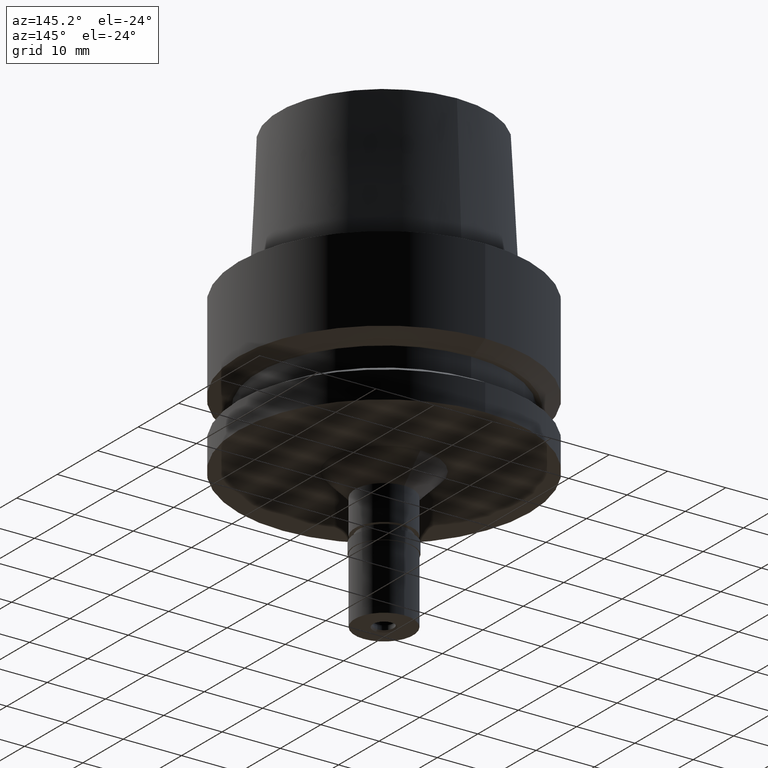
[diagram: clean part render]
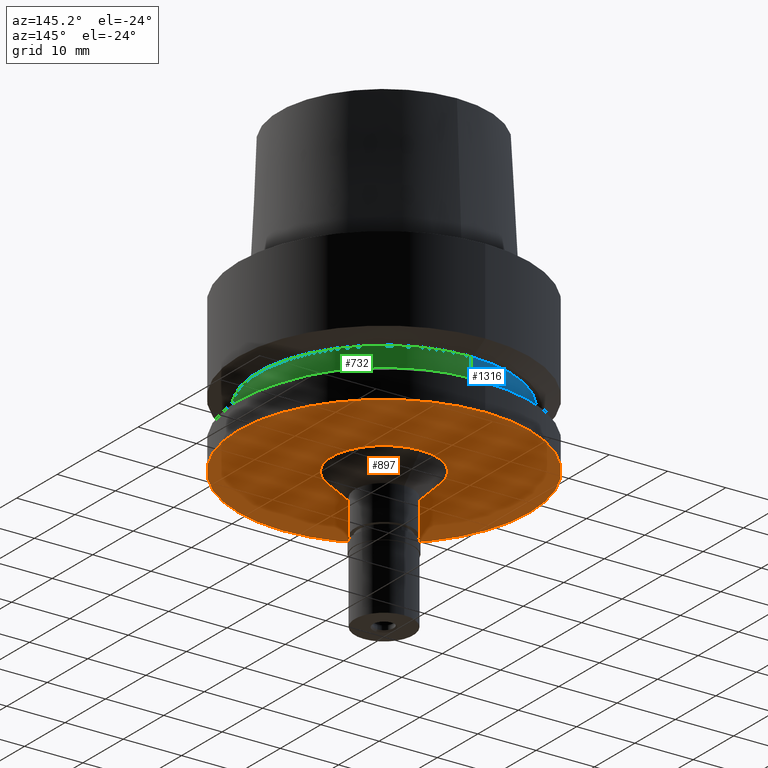
[diagram: same view with three faces highlighted in distinct colors, each labeled with its STEP entity id]
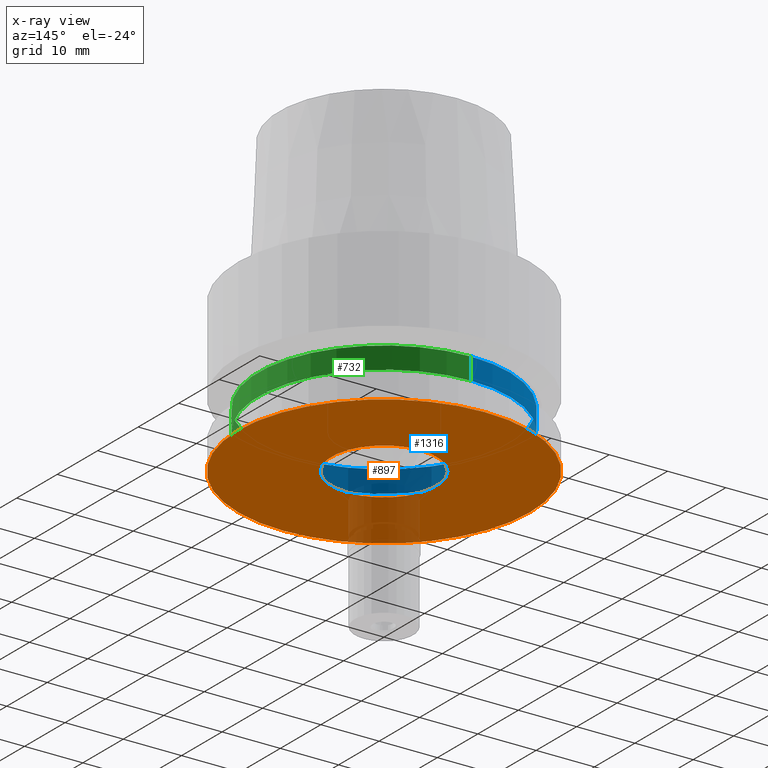
[diagram: x-ray of the same camera — body ghosted, the three highlighted faces saturated]
A machine part, auxiliary view with three faces highlighted in distinct colors.
The next image is the same camera in x-ray (body ghosted, the three faces saturated) — at least one of them is partly hidden behind the body in this view.
Their STEP definitions:

[orange] entity #897 — the highlighted planar face has unit normal (0, 0, 1).
#6 = VERTEX_POINT ( 'NONE', #2227 ) ;
#18 = CIRCLE ( 'NONE', #1287, 25.00000000000000000 ) ;
#46 = ORIENTED_EDGE ( 'NONE', *, *, #1903, .F. ) ;
#50 = DIRECTION ( 'NONE',  ( 0.0000000000000000000, -1.000000000000000000, 0.0000000000000000000 ) ) ;
#85 = DIRECTION ( 'NONE',  ( 0.0000000000000000000, 1.000000000000000000, 0.0000000000000000000 ) ) ;
#673 = DIRECTION ( 'NONE',  ( 1.000000000000000000, 0.0000000000000000000, 0.0000000000000000000 ) ) ;
#771 = CARTESIAN_POINT ( 'NONE',  ( 0.0000000000000000000, 9.000000000000000000, -26.00000000000000000 ) ) ;
#807 = EDGE_CURVE ( 'NONE', #1955, #1289, #1363, .T. ) ;
#897 = ADVANCED_FACE ( 'NONE', ( #1482, #1081 ), #1283, .F. ) ;
#913 = EDGE_CURVE ( 'NONE', #6, #1162, #1320, .T. ) ;
#925 = CARTESIAN_POINT ( 'NONE',  ( 0.0000000000000000000, 25.00000000000000000, -26.00000000000000000 ) ) ;
#1028 = ORIENTED_EDGE ( 'NONE', *, *, #807, .F. ) ;
#1038 = EDGE_LOOP ( 'NONE', ( #46, #1456 ) ) ;
#1051 = AXIS2_PLACEMENT_3D ( 'NONE', #2682, #2020, #2031 ) ;
#1081 = FACE_BOUND ( 'NONE', #1481, .T. ) ;
#1162 = VERTEX_POINT ( 'NONE', #925 ) ;
#1267 = EDGE_CURVE ( 'NONE', #1289, #1955, #2231, .T. ) ;
#1283 = PLANE ( 'NONE',  #2486 ) ;
#1287 = AXIS2_PLACEMENT_3D ( 'NONE', #2065, #2475, #2247 ) ;
#1289 = VERTEX_POINT ( 'NONE', #771 ) ;
#1320 = CIRCLE ( 'NONE', #2570, 25.00000000000000000 ) ;
#1363 = CIRCLE ( 'NONE', #1051, 9.000000000000000000 ) ;
#1456 = ORIENTED_EDGE ( 'NONE', *, *, #913, .F. ) ;
#1458 = AXIS2_PLACEMENT_3D ( 'NONE', #1732, #1541, #85 ) ;
#1481 = EDGE_LOOP ( 'NONE', ( #2001, #1028 ) ) ;
#1482 = FACE_OUTER_BOUND ( 'NONE', #1038, .T. ) ;
#1541 = DIRECTION ( 'NONE',  ( 0.0000000000000000000, 0.0000000000000000000, -1.000000000000000000 ) ) ;
#1689 = DIRECTION ( 'NONE',  ( 0.0000000000000000000, 0.0000000000000000000, 1.000000000000000000 ) ) ;
#1732 = CARTESIAN_POINT ( 'NONE',  ( 0.0000000000000000000, 0.0000000000000000000, -26.00000000000000000 ) ) ;
#1903 = EDGE_CURVE ( 'NONE', #1162, #6, #18, .T. ) ;
#1955 = VERTEX_POINT ( 'NONE', #2292 ) ;
#2001 = ORIENTED_EDGE ( 'NONE', *, *, #1267, .F. ) ;
#2020 = DIRECTION ( 'NONE',  ( 0.0000000000000000000, 0.0000000000000000000, -1.000000000000000000 ) ) ;
#2031 = DIRECTION ( 'NONE',  ( 0.0000000000000000000, -1.000000000000000000, 0.0000000000000000000 ) ) ;
#2065 = CARTESIAN_POINT ( 'NONE',  ( 0.0000000000000000000, 0.0000000000000000000, -26.00000000000000000 ) ) ;
#2100 = CARTESIAN_POINT ( 'NONE',  ( 0.0000000000000000000, 0.0000000000000000000, -26.00000000000000000 ) ) ;
#2227 = CARTESIAN_POINT ( 'NONE',  ( 0.0000000000000000000, -25.00000000000000000, -26.00000000000000000 ) ) ;
#2231 = CIRCLE ( 'NONE', #1458, 9.000000000000000000 ) ;
#2247 = DIRECTION ( 'NONE',  ( 0.0000000000000000000, 1.000000000000000000, 0.0000000000000000000 ) ) ;
#2292 = CARTESIAN_POINT ( 'NONE',  ( 0.0000000000000000000, -9.000000000000000000, -26.00000000000000000 ) ) ;
#2315 = DIRECTION ( 'NONE',  ( 0.0000000000000000000, 0.0000000000000000000, 1.000000000000000000 ) ) ;
#2475 = DIRECTION ( 'NONE',  ( 0.0000000000000000000, 0.0000000000000000000, 1.000000000000000000 ) ) ;
#2486 = AXIS2_PLACEMENT_3D ( 'NONE', #2524, #2315, #673 ) ;
#2524 = CARTESIAN_POINT ( 'NONE',  ( 0.0000000000000000000, 0.0000000000000000000, -26.00000000000000000 ) ) ;
#2570 = AXIS2_PLACEMENT_3D ( 'NONE', #2100, #1689, #50 ) ;
#2682 = CARTESIAN_POINT ( 'NONE',  ( 0.0000000000000000000, 0.0000000000000000000, -26.00000000000000000 ) ) ;

[blue] entity #1316 — the highlighted cylindrical surface (partial cylindrical patch) has radius 21.5 mm, axis along (0, 0, 1).
#115 = VERTEX_POINT ( 'NONE', #765 ) ;
#230 = CARTESIAN_POINT ( 'NONE',  ( 0.0000000000000000000, -21.50000000000000000, -16.12500000000000000 ) ) ;
#236 = AXIS2_PLACEMENT_3D ( 'NONE', #1384, #2198, #332 ) ;
#332 = DIRECTION ( 'NONE',  ( 0.0000000000000000000, 1.000000000000000000, 0.0000000000000000000 ) ) ;
#354 = VECTOR ( 'NONE', #1965, 1000.000000000000000 ) ;
#376 = VERTEX_POINT ( 'NONE', #2067 ) ;
#390 = EDGE_CURVE ( 'NONE', #376, #115, #1103, .T. ) ;
#462 = CARTESIAN_POINT ( 'NONE',  ( 0.0000000000000000000, 0.0000000000000000000, -16.12500000000000000 ) ) ;
#473 = DIRECTION ( 'NONE',  ( 0.0000000000000000000, 0.0000000000000000000, -1.000000000000000000 ) ) ;
#489 = AXIS2_PLACEMENT_3D ( 'NONE', #1212, #2456, #1220 ) ;
#581 = EDGE_LOOP ( 'NONE', ( #595, #2019, #1145, #2156 ) ) ;
#595 = ORIENTED_EDGE ( 'NONE', *, *, #2328, .T. ) ;
#647 = VECTOR ( 'NONE', #1897, 1000.000000000000000 ) ;
#651 = DIRECTION ( 'NONE',  ( 0.0000000000000000000, -1.000000000000000000, 0.0000000000000000000 ) ) ;
#765 = CARTESIAN_POINT ( 'NONE',  ( 0.0000000000000000000, -21.50000000000000000, -19.87500000000000000 ) ) ;
#1103 = LINE ( 'NONE', #230, #647 ) ;
#1131 = CARTESIAN_POINT ( 'NONE',  ( 0.0000000000000000000, 21.50000000000000000, -16.12500000000000000 ) ) ;
#1145 = ORIENTED_EDGE ( 'NONE', *, *, #2604, .T. ) ;
#1161 = EDGE_CURVE ( 'NONE', #1863, #1364, #2205, .T. ) ;
#1212 = CARTESIAN_POINT ( 'NONE',  ( 0.0000000000000000000, 0.0000000000000000000, -49.86500000000000199 ) ) ;
#1220 = DIRECTION ( 'NONE',  ( 0.0000000000000000000, 1.000000000000000000, 0.0000000000000000000 ) ) ;
#1316 = ADVANCED_FACE ( 'NONE', ( #1404 ), #1616, .T. ) ;
#1364 = VERTEX_POINT ( 'NONE', #2691 ) ;
#1384 = CARTESIAN_POINT ( 'NONE',  ( 0.0000000000000000000, 0.0000000000000000000, -19.87500000000000000 ) ) ;
#1404 = FACE_OUTER_BOUND ( 'NONE', #581, .T. ) ;
#1438 = CARTESIAN_POINT ( 'NONE',  ( 0.0000000000000000000, 21.50000000000000000, -16.12500000000000000 ) ) ;
#1549 = CIRCLE ( 'NONE', #2187, 21.50000000000000000 ) ;
#1616 = CYLINDRICAL_SURFACE ( 'NONE', #489, 21.50000000000000000 ) ;
#1863 = VERTEX_POINT ( 'NONE', #1438 ) ;
#1897 = DIRECTION ( 'NONE',  ( 0.0000000000000000000, 0.0000000000000000000, -1.000000000000000000 ) ) ;
#1965 = DIRECTION ( 'NONE',  ( 0.0000000000000000000, 0.0000000000000000000, -1.000000000000000000 ) ) ;
#2009 = CIRCLE ( 'NONE', #236, 21.50000000000000000 ) ;
#2019 = ORIENTED_EDGE ( 'NONE', *, *, #390, .F. ) ;
#2067 = CARTESIAN_POINT ( 'NONE',  ( 0.0000000000000000000, -21.50000000000000000, -16.12500000000000000 ) ) ;
#2156 = ORIENTED_EDGE ( 'NONE', *, *, #1161, .T. ) ;
#2187 = AXIS2_PLACEMENT_3D ( 'NONE', #462, #473, #651 ) ;
#2198 = DIRECTION ( 'NONE',  ( 0.0000000000000000000, 0.0000000000000000000, 1.000000000000000000 ) ) ;
#2205 = LINE ( 'NONE', #1131, #354 ) ;
#2328 = EDGE_CURVE ( 'NONE', #1364, #115, #2009, .T. ) ;
#2456 = DIRECTION ( 'NONE',  ( 0.0000000000000000000, 0.0000000000000000000, 1.000000000000000000 ) ) ;
#2604 = EDGE_CURVE ( 'NONE', #376, #1863, #1549, .T. ) ;
#2691 = CARTESIAN_POINT ( 'NONE',  ( 0.0000000000000000000, 21.50000000000000000, -19.87500000000000000 ) ) ;

[green] entity #732 — the highlighted cylindrical surface (partial cylindrical patch) has radius 21.5 mm, axis along (0, 0, 1).
#93 = DIRECTION ( 'NONE',  ( 0.0000000000000000000, 1.000000000000000000, 0.0000000000000000000 ) ) ;
#115 = VERTEX_POINT ( 'NONE', #765 ) ;
#230 = CARTESIAN_POINT ( 'NONE',  ( 0.0000000000000000000, -21.50000000000000000, -16.12500000000000000 ) ) ;
#267 = ORIENTED_EDGE ( 'NONE', *, *, #1161, .F. ) ;
#354 = VECTOR ( 'NONE', #1965, 1000.000000000000000 ) ;
#376 = VERTEX_POINT ( 'NONE', #2067 ) ;
#390 = EDGE_CURVE ( 'NONE', #376, #115, #1103, .T. ) ;
#485 = CARTESIAN_POINT ( 'NONE',  ( 0.0000000000000000000, 0.0000000000000000000, -16.12500000000000000 ) ) ;
#559 = CARTESIAN_POINT ( 'NONE',  ( 0.0000000000000000000, 0.0000000000000000000, -49.86500000000000199 ) ) ;
#647 = VECTOR ( 'NONE', #1897, 1000.000000000000000 ) ;
#670 = ORIENTED_EDGE ( 'NONE', *, *, #756, .T. ) ;
#732 = ADVANCED_FACE ( 'NONE', ( #1636 ), #2668, .T. ) ;
#756 = EDGE_CURVE ( 'NONE', #115, #1364, #2170, .T. ) ;
#765 = CARTESIAN_POINT ( 'NONE',  ( 0.0000000000000000000, -21.50000000000000000, -19.87500000000000000 ) ) ;
#822 = DIRECTION ( 'NONE',  ( 0.0000000000000000000, 0.0000000000000000000, 1.000000000000000000 ) ) ;
#872 = AXIS2_PLACEMENT_3D ( 'NONE', #559, #822, #2430 ) ;
#1026 = ORIENTED_EDGE ( 'NONE', *, *, #2106, .T. ) ;
#1043 = CARTESIAN_POINT ( 'NONE',  ( 0.0000000000000000000, 0.0000000000000000000, -19.87500000000000000 ) ) ;
#1048 = ORIENTED_EDGE ( 'NONE', *, *, #390, .T. ) ;
#1103 = LINE ( 'NONE', #230, #647 ) ;
#1131 = CARTESIAN_POINT ( 'NONE',  ( 0.0000000000000000000, 21.50000000000000000, -16.12500000000000000 ) ) ;
#1161 = EDGE_CURVE ( 'NONE', #1863, #1364, #2205, .T. ) ;
#1288 = CIRCLE ( 'NONE', #2675, 21.50000000000000000 ) ;
#1339 = EDGE_LOOP ( 'NONE', ( #1026, #1048, #670, #267 ) ) ;
#1364 = VERTEX_POINT ( 'NONE', #2691 ) ;
#1438 = CARTESIAN_POINT ( 'NONE',  ( 0.0000000000000000000, 21.50000000000000000, -16.12500000000000000 ) ) ;
#1636 = FACE_OUTER_BOUND ( 'NONE', #1339, .T. ) ;
#1863 = VERTEX_POINT ( 'NONE', #1438 ) ;
#1897 = DIRECTION ( 'NONE',  ( 0.0000000000000000000, 0.0000000000000000000, -1.000000000000000000 ) ) ;
#1965 = DIRECTION ( 'NONE',  ( 0.0000000000000000000, 0.0000000000000000000, -1.000000000000000000 ) ) ;
#2067 = CARTESIAN_POINT ( 'NONE',  ( 0.0000000000000000000, -21.50000000000000000, -16.12500000000000000 ) ) ;
#2106 = EDGE_CURVE ( 'NONE', #1863, #376, #1288, .T. ) ;
#2140 = DIRECTION ( 'NONE',  ( 0.0000000000000000000, 0.0000000000000000000, -1.000000000000000000 ) ) ;
#2170 = CIRCLE ( 'NONE', #2529, 21.50000000000000000 ) ;
#2205 = LINE ( 'NONE', #1131, #354 ) ;
#2228 = DIRECTION ( 'NONE',  ( 0.0000000000000000000, 0.0000000000000000000, 1.000000000000000000 ) ) ;
#2289 = DIRECTION ( 'NONE',  ( 0.0000000000000000000, -1.000000000000000000, 0.0000000000000000000 ) ) ;
#2430 = DIRECTION ( 'NONE',  ( 0.0000000000000000000, 1.000000000000000000, 0.0000000000000000000 ) ) ;
#2529 = AXIS2_PLACEMENT_3D ( 'NONE', #1043, #2228, #2289 ) ;
#2668 = CYLINDRICAL_SURFACE ( 'NONE', #872, 21.50000000000000000 ) ;
#2675 = AXIS2_PLACEMENT_3D ( 'NONE', #485, #2140, #93 ) ;
#2691 = CARTESIAN_POINT ( 'NONE',  ( 0.0000000000000000000, 21.50000000000000000, -19.87500000000000000 ) ) ;